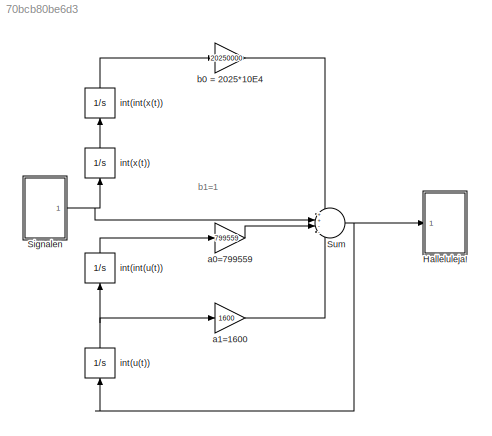
MODEL slx_70bcb80be6d3
KIND model
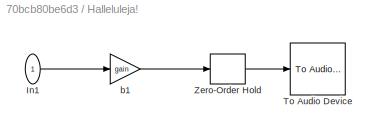
BLOCK [SubSystem] Halleluleja!
  Ports = [1]
  RequestExecContextInheritance = off
BLOCK [Inport] Halleluleja!/In1
  IconDisplay = Port number
BLOCK [Reference] Halleluleja!/To Audio Device  REF=dspsnks4/To Audio
Device
  Ports = [1]
  SourceBlock = dspsnks4/To Audio\nDevice
  SourceType = To Audio Device
  autoBufferSize = on
  bufferSize = 4096
  defaultOutputChannelMapping = on
  deviceDatatype = Determine from input data type
  deviceName = Default
  inheritSampleRate = on
  outputChannelMapping = 1
  queueDuration = 1.0
  sampleRate = 44100
BLOCK [ZeroOrderHold] Halleluleja!/Zero-Order Hold
  SampleTime = 1/Fs
BLOCK [Gain] Halleluleja!/b1
  Gain = gain
  OutDataTypeStr = Inherit: Inherit via internal rule
  ParamDataTypeStr = Inherit: Inherit via internal rule
  SaturateOnIntegerOverflow = off
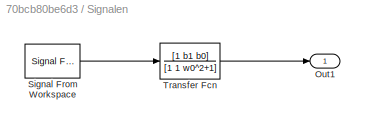
BLOCK [SubSystem] Signalen
  Ports = [0, 1]
  RequestExecContextInheritance = off
BLOCK [Outport] Signalen/Out1
  IconDisplay = Port number
BLOCK [Reference] Signalen/Signal From Workspace  REF=dspsrcs4/Signal From
Workspace
  OutputAfterFinalValue = Setting to zero
  Ports = [0, 1]
  SourceBlock = dspsrcs4/Signal From\nWorkspace
  SourceType = Signal From Workspace
  Ts = 1/Fs
  X = y
  ignoreOrWarnInputAndFrameLengths = off
  nsamps = 1
BLOCK [TransferFcn] Signalen/Transfer Fcn
  Denominator = [1 1 w0^2+1]
  Numerator = [1 b1 b0]
BLOCK [Sum] Sum
  IconShape = round
  InputSameDT = off
  Inputs = ++--
  OutDataTypeStr = Inherit: Inherit via internal rule
  Ports = [4, 1]
  SaturateOnIntegerOverflow = off
BLOCK [Gain] a0=799559
  Gain = 799559
  OutDataTypeStr = Inherit: Inherit via internal rule
  ParamDataTypeStr = Inherit: Inherit via internal rule
  SaturateOnIntegerOverflow = off
BLOCK [Gain] a1=1600
  Gain = 1600
  OutDataTypeStr = Inherit: Inherit via internal rule
  ParamDataTypeStr = Inherit: Inherit via internal rule
  SaturateOnIntegerOverflow = off
BLOCK [Gain] b0 = 2025*10E4
  Gain = 20250000
  OutDataTypeStr = Inherit: Inherit via internal rule
  ParamDataTypeStr = Inherit: Inherit via internal rule
  SaturateOnIntegerOverflow = off
BLOCK [Integrator] int(int(u(t))
  Ports = [1, 1]
BLOCK [Integrator] int(int(x(t))
  Ports = [1, 1]
BLOCK [Integrator] int(u(t))
  Ports = [1, 1]
BLOCK [Integrator] int(x(t))
  Ports = [1, 1]
ANNOTATION (root): b1=1
LINE Halleluleja!/In1:1 -> Halleluleja!/b1:1
LINE Halleluleja!/Zero-Order Hold:1 -> Halleluleja!/To Audio Device:1
LINE Halleluleja!/b1:1 -> Halleluleja!/Zero-Order Hold:1
LINE Signalen/Signal From Workspace:1 -> Signalen/Transfer Fcn:1
LINE Signalen/Transfer Fcn:1 -> Signalen/Out1:1
NET Signalen:1 -> Sum:2, int(x(t)):1
NET Sum:1 -> Halleluleja!:1, int(u(t)):1
LINE a0=799559:1 -> Sum:3
LINE a1=1600:1 -> Sum:4
LINE b0 = 2025*10E4:1 -> Sum:1
LINE int(int(u(t)):1 -> a0=799559:1
LINE int(int(x(t)):1 -> b0 = 2025*10E4:1
NET int(u(t)):1 -> a1=1600:1, int(int(u(t)):1
LINE int(x(t)):1 -> int(int(x(t)):1
note: NET lines group one-source signal fan-out (src -> all destinations, sorted); 1:1 wires keep LINE
